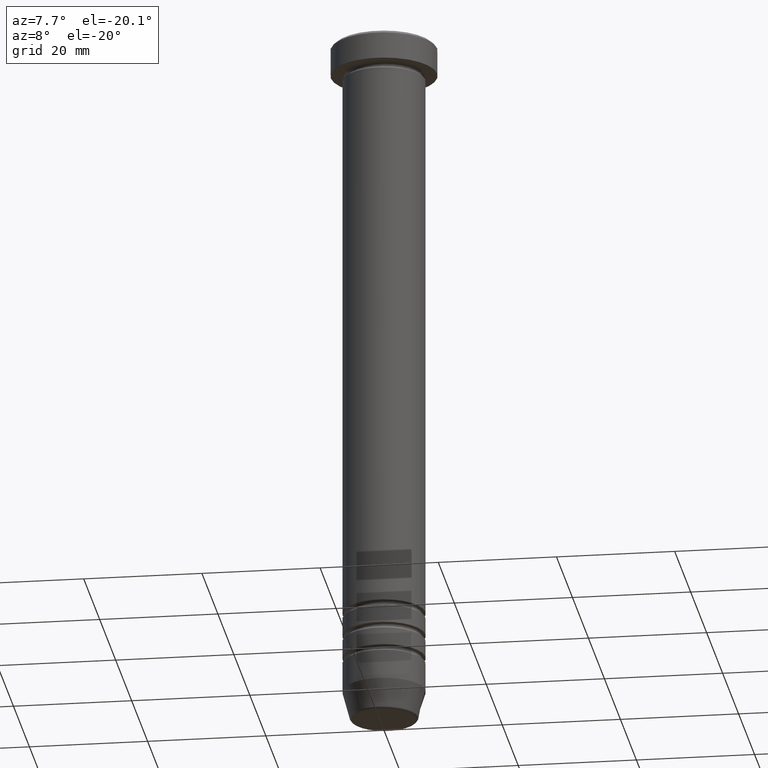
[diagram: clean part render]
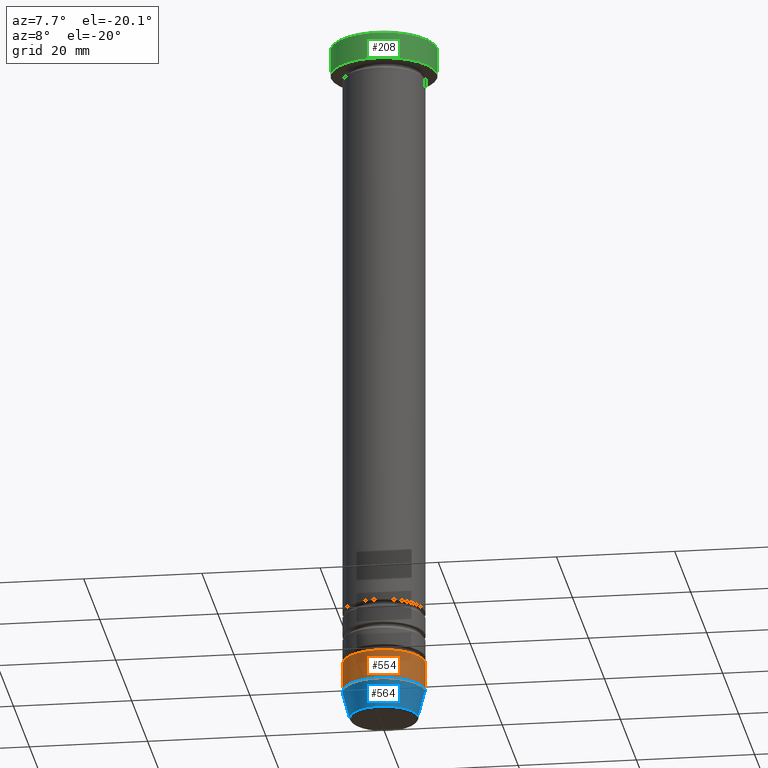
[diagram: same view with three faces highlighted in distinct colors, each labeled with its STEP entity id]
A machine part, auxiliary view with three faces highlighted in distinct colors.
Their STEP definitions:

[orange] entity #554 — the highlighted cylindrical surface (partial cylindrical patch) has radius 7 mm, axis along (-0, -0, 1).
#58 = AXIS2_PLACEMENT_3D ( 'NONE', #409, #324, #158 ) ;
#65 = CYLINDRICAL_SURFACE ( 'NONE', #58, 7.000000000000000000 ) ;
#111 = VECTOR ( 'NONE', #574, 1000.000000000000000 ) ;
#121 = EDGE_LOOP ( 'NONE', ( #723, #617, #304, #508 ) ) ;
#122 = EDGE_CURVE ( 'NONE', #369, #397, #511, .T. ) ;
#125 = EDGE_CURVE ( 'NONE', #397, #663, #234, .T. ) ;
#158 = DIRECTION ( 'NONE',  ( 1.000000000000000000, 0.000000000000000000, 0.000000000000000000 ) ) ;
#213 = CARTESIAN_POINT ( 'NONE',  ( -7.000000000000000000, 8.572527594031473190E-16, -114.9999999999999858 ) ) ;
#234 = CIRCLE ( 'NONE', #317, 7.000000000000000000 ) ;
#260 = VERTEX_POINT ( 'NONE', #687 ) ;
#304 = ORIENTED_EDGE ( 'NONE', *, *, #524, .T. ) ;
#317 = AXIS2_PLACEMENT_3D ( 'NONE', #600, #437, #505 ) ;
#324 = DIRECTION ( 'NONE',  ( -0.000000000000000000, -0.000000000000000000, 1.000000000000000000 ) ) ;
#351 = AXIS2_PLACEMENT_3D ( 'NONE', #526, #464, #792 ) ;
#369 = VERTEX_POINT ( 'NONE', #213 ) ;
#396 = CARTESIAN_POINT ( 'NONE',  ( 7.000000000000000000, 0.000000000000000000, -109.9999999999999858 ) ) ;
#397 = VERTEX_POINT ( 'NONE', #868 ) ;
#407 = EDGE_CURVE ( 'NONE', #369, #260, #551, .T. ) ;
#409 = CARTESIAN_POINT ( 'NONE',  ( 0.000000000000000000, 0.000000000000000000, 0.000000000000000000 ) ) ;
#437 = DIRECTION ( 'NONE',  ( -0.000000000000000000, -0.000000000000000000, 1.000000000000000000 ) ) ;
#464 = DIRECTION ( 'NONE',  ( -0.000000000000000000, -0.000000000000000000, 1.000000000000000000 ) ) ;
#505 = DIRECTION ( 'NONE',  ( 1.000000000000000000, 0.000000000000000000, 0.000000000000000000 ) ) ;
#508 = ORIENTED_EDGE ( 'NONE', *, *, #125, .F. ) ;
#511 = LINE ( 'NONE', #584, #1013 ) ;
#524 = EDGE_CURVE ( 'NONE', #260, #663, #799, .T. ) ;
#526 = CARTESIAN_POINT ( 'NONE',  ( 0.000000000000000000, 0.000000000000000000, -114.9999999999999858 ) ) ;
#551 = CIRCLE ( 'NONE', #351, 7.000000000000000000 ) ;
#554 = ADVANCED_FACE ( 'NONE', ( #963 ), #65, .T. ) ;
#574 = DIRECTION ( 'NONE',  ( -0.000000000000000000, -0.000000000000000000, 1.000000000000000000 ) ) ;
#584 = CARTESIAN_POINT ( 'NONE',  ( -7.000000000000000000, 8.572527594031473190E-16, 0.000000000000000000 ) ) ;
#600 = CARTESIAN_POINT ( 'NONE',  ( 0.000000000000000000, 0.000000000000000000, -109.9999999999999858 ) ) ;
#617 = ORIENTED_EDGE ( 'NONE', *, *, #407, .T. ) ;
#663 = VERTEX_POINT ( 'NONE', #396 ) ;
#685 = DIRECTION ( 'NONE',  ( -0.000000000000000000, -0.000000000000000000, 1.000000000000000000 ) ) ;
#687 = CARTESIAN_POINT ( 'NONE',  ( 7.000000000000000000, 0.000000000000000000, -114.9999999999999858 ) ) ;
#723 = ORIENTED_EDGE ( 'NONE', *, *, #122, .F. ) ;
#792 = DIRECTION ( 'NONE',  ( 1.000000000000000000, 0.000000000000000000, 0.000000000000000000 ) ) ;
#799 = LINE ( 'NONE', #885, #111 ) ;
#868 = CARTESIAN_POINT ( 'NONE',  ( -7.000000000000000000, 8.572527594031473190E-16, -109.9999999999999858 ) ) ;
#885 = CARTESIAN_POINT ( 'NONE',  ( 7.000000000000000000, 0.000000000000000000, 0.000000000000000000 ) ) ;
#963 = FACE_OUTER_BOUND ( 'NONE', #121, .T. ) ;
#1013 = VECTOR ( 'NONE', #685, 1000.000000000000000 ) ;

[blue] entity #564 — the highlighted conical surface has half-angle 15 deg.
#5 = CONICAL_SURFACE ( 'NONE', #729, 5.660254037844381081, 0.2617993877991502405 ) ;
#48 = VERTEX_POINT ( 'NONE', #909 ) ;
#73 = FACE_OUTER_BOUND ( 'NONE', #739, .T. ) ;
#138 = DIRECTION ( 'NONE',  ( -0.2588190451025214611, 3.169619151431774186E-17, 0.9659258262890679791 ) ) ;
#148 = ORIENTED_EDGE ( 'NONE', *, *, #407, .F. ) ;
#213 = CARTESIAN_POINT ( 'NONE',  ( -7.000000000000000000, 8.572527594031473190E-16, -114.9999999999999858 ) ) ;
#222 = DIRECTION ( 'NONE',  ( -1.000000000000000000, 0.000000000000000000, 0.000000000000000000 ) ) ;
#229 = ORIENTED_EDGE ( 'NONE', *, *, #390, .T. ) ;
#241 = ORIENTED_EDGE ( 'NONE', *, *, #1025, .T. ) ;
#260 = VERTEX_POINT ( 'NONE', #687 ) ;
#326 = EDGE_CURVE ( 'NONE', #48, #369, #954, .T. ) ;
#341 = DIRECTION ( 'NONE',  ( 0.2588190451025214611, 0.000000000000000000, 0.9659258262890679791 ) ) ;
#351 = AXIS2_PLACEMENT_3D ( 'NONE', #526, #464, #792 ) ;
#365 = CARTESIAN_POINT ( 'NONE',  ( 0.000000000000000000, 0.000000000000000000, -119.6294095225512564 ) ) ;
#369 = VERTEX_POINT ( 'NONE', #213 ) ;
#390 = EDGE_CURVE ( 'NONE', #48, #726, #947, .T. ) ;
#405 = DIRECTION ( 'NONE',  ( -0.000000000000000000, -0.000000000000000000, 1.000000000000000000 ) ) ;
#407 = EDGE_CURVE ( 'NONE', #369, #260, #551, .T. ) ;
#417 = VECTOR ( 'NONE', #341, 1000.000000000000114 ) ;
#464 = DIRECTION ( 'NONE',  ( -0.000000000000000000, -0.000000000000000000, 1.000000000000000000 ) ) ;
#491 = CARTESIAN_POINT ( 'NONE',  ( 0.000000000000000000, 0.000000000000000000, -120.0000000000000000 ) ) ;
#493 = LINE ( 'NONE', #673, #417 ) ;
#526 = CARTESIAN_POINT ( 'NONE',  ( 0.000000000000000000, 0.000000000000000000, -114.9999999999999858 ) ) ;
#551 = CIRCLE ( 'NONE', #351, 7.000000000000000000 ) ;
#564 = ADVANCED_FACE ( 'NONE', ( #73 ), #5, .T. ) ;
#575 = ORIENTED_EDGE ( 'NONE', *, *, #326, .F. ) ;
#621 = AXIS2_PLACEMENT_3D ( 'NONE', #365, #934, #222 ) ;
#673 = CARTESIAN_POINT ( 'NONE',  ( 5.660254037844381081, 0.000000000000000000, -120.0000000000000000 ) ) ;
#687 = CARTESIAN_POINT ( 'NONE',  ( 7.000000000000000000, 0.000000000000000000, -114.9999999999999858 ) ) ;
#699 = CARTESIAN_POINT ( 'NONE',  ( -5.660254037844381081, 6.931811989807003364E-16, -120.0000000000000000 ) ) ;
#726 = VERTEX_POINT ( 'NONE', #852 ) ;
#729 = AXIS2_PLACEMENT_3D ( 'NONE', #491, #405, #968 ) ;
#739 = EDGE_LOOP ( 'NONE', ( #575, #229, #241, #148 ) ) ;
#792 = DIRECTION ( 'NONE',  ( 1.000000000000000000, 0.000000000000000000, 0.000000000000000000 ) ) ;
#852 = CARTESIAN_POINT ( 'NONE',  ( 5.759553456999429777, 0.000000000000000000, -119.6294095225512564 ) ) ;
#878 = VECTOR ( 'NONE', #138, 1000.000000000000114 ) ;
#909 = CARTESIAN_POINT ( 'NONE',  ( -5.759553456999429777, 7.812973149831948815E-16, -119.6294095225512564 ) ) ;
#934 = DIRECTION ( 'NONE',  ( -0.000000000000000000, -0.000000000000000000, 1.000000000000000000 ) ) ;
#947 = CIRCLE ( 'NONE', #621, 5.759553456999429777 ) ;
#954 = LINE ( 'NONE', #699, #878 ) ;
#968 = DIRECTION ( 'NONE',  ( 1.000000000000000000, 0.000000000000000000, 0.000000000000000000 ) ) ;
#1025 = EDGE_CURVE ( 'NONE', #726, #260, #493, .T. ) ;

[green] entity #208 — the highlighted cylindrical surface (partial cylindrical patch) has radius 9 mm, axis along (-0, -0, 1).
#15 = CYLINDRICAL_SURFACE ( 'NONE', #895, 9.000000000000000000 ) ;
#35 = CARTESIAN_POINT ( 'NONE',  ( 9.000000000000000000, 0.000000000000000000, -5.000000000000000000 ) ) ;
#59 = LINE ( 'NONE', #691, #777 ) ;
#89 = VERTEX_POINT ( 'NONE', #35 ) ;
#129 = VECTOR ( 'NONE', #869, 1000.000000000000000 ) ;
#134 = CARTESIAN_POINT ( 'NONE',  ( 0.000000000000000000, 0.000000000000000000, -5.000000000000000000 ) ) ;
#139 = EDGE_CURVE ( 'NONE', #942, #244, #830, .T. ) ;
#193 = FACE_OUTER_BOUND ( 'NONE', #577, .T. ) ;
#208 = ADVANCED_FACE ( 'NONE', ( #193 ), #15, .T. ) ;
#225 = ORIENTED_EDGE ( 'NONE', *, *, #408, .T. ) ;
#244 = VERTEX_POINT ( 'NONE', #753 ) ;
#259 = ORIENTED_EDGE ( 'NONE', *, *, #880, .F. ) ;
#263 = VERTEX_POINT ( 'NONE', #1009 ) ;
#274 = DIRECTION ( 'NONE',  ( 0.000000000000000000, 0.000000000000000000, -1.000000000000000000 ) ) ;
#286 = CIRCLE ( 'NONE', #1019, 9.000000000000000000 ) ;
#312 = EDGE_CURVE ( 'NONE', #263, #89, #286, .T. ) ;
#355 = CARTESIAN_POINT ( 'NONE',  ( 0.000000000000000000, 0.000000000000000000, -0.4999999999999952260 ) ) ;
#408 = EDGE_CURVE ( 'NONE', #89, #942, #59, .T. ) ;
#428 = ORIENTED_EDGE ( 'NONE', *, *, #139, .T. ) ;
#461 = DIRECTION ( 'NONE',  ( -0.000000000000000000, -0.000000000000000000, 1.000000000000000000 ) ) ;
#463 = ORIENTED_EDGE ( 'NONE', *, *, #312, .T. ) ;
#466 = AXIS2_PLACEMENT_3D ( 'NONE', #355, #274, #679 ) ;
#479 = CARTESIAN_POINT ( 'NONE',  ( -9.000000000000000000, 1.102182119232617714E-15, 0.000000000000000000 ) ) ;
#565 = LINE ( 'NONE', #479, #129 ) ;
#577 = EDGE_LOOP ( 'NONE', ( #259, #463, #225, #428 ) ) ;
#675 = CARTESIAN_POINT ( 'NONE',  ( 0.000000000000000000, 0.000000000000000000, 0.000000000000000000 ) ) ;
#679 = DIRECTION ( 'NONE',  ( 1.000000000000000000, 0.000000000000000000, 0.000000000000000000 ) ) ;
#691 = CARTESIAN_POINT ( 'NONE',  ( 9.000000000000000000, 0.000000000000000000, 0.000000000000000000 ) ) ;
#700 = CARTESIAN_POINT ( 'NONE',  ( 9.000000000000000000, 0.000000000000000000, -0.4999999999999952260 ) ) ;
#753 = CARTESIAN_POINT ( 'NONE',  ( -9.000000000000000000, 1.102182119232617714E-15, -0.4999999999999952260 ) ) ;
#777 = VECTOR ( 'NONE', #851, 1000.000000000000000 ) ;
#830 = CIRCLE ( 'NONE', #466, 9.000000000000000000 ) ;
#851 = DIRECTION ( 'NONE',  ( -0.000000000000000000, -0.000000000000000000, 1.000000000000000000 ) ) ;
#869 = DIRECTION ( 'NONE',  ( -0.000000000000000000, -0.000000000000000000, 1.000000000000000000 ) ) ;
#880 = EDGE_CURVE ( 'NONE', #263, #244, #565, .T. ) ;
#895 = AXIS2_PLACEMENT_3D ( 'NONE', #675, #906, #916 ) ;
#906 = DIRECTION ( 'NONE',  ( -0.000000000000000000, -0.000000000000000000, 1.000000000000000000 ) ) ;
#916 = DIRECTION ( 'NONE',  ( 1.000000000000000000, 0.000000000000000000, 0.000000000000000000 ) ) ;
#942 = VERTEX_POINT ( 'NONE', #700 ) ;
#1009 = CARTESIAN_POINT ( 'NONE',  ( -9.000000000000000000, 1.102182119232617714E-15, -5.000000000000000000 ) ) ;
#1019 = AXIS2_PLACEMENT_3D ( 'NONE', #134, #461, #1041 ) ;
#1041 = DIRECTION ( 'NONE',  ( 1.000000000000000000, 0.000000000000000000, 0.000000000000000000 ) ) ;